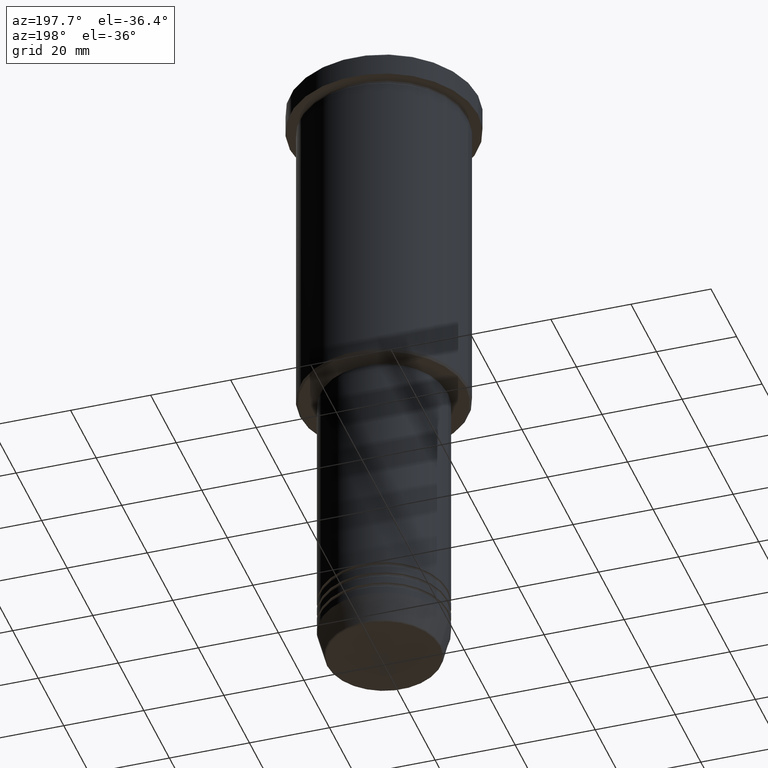
[diagram: clean part render]
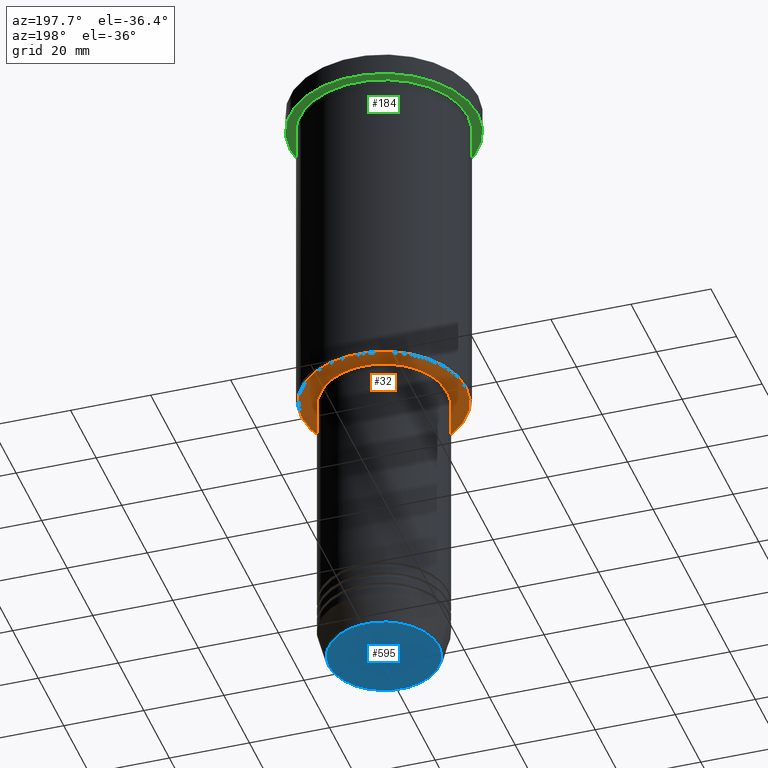
[diagram: same view with three faces highlighted in distinct colors, each labeled with its STEP entity id]
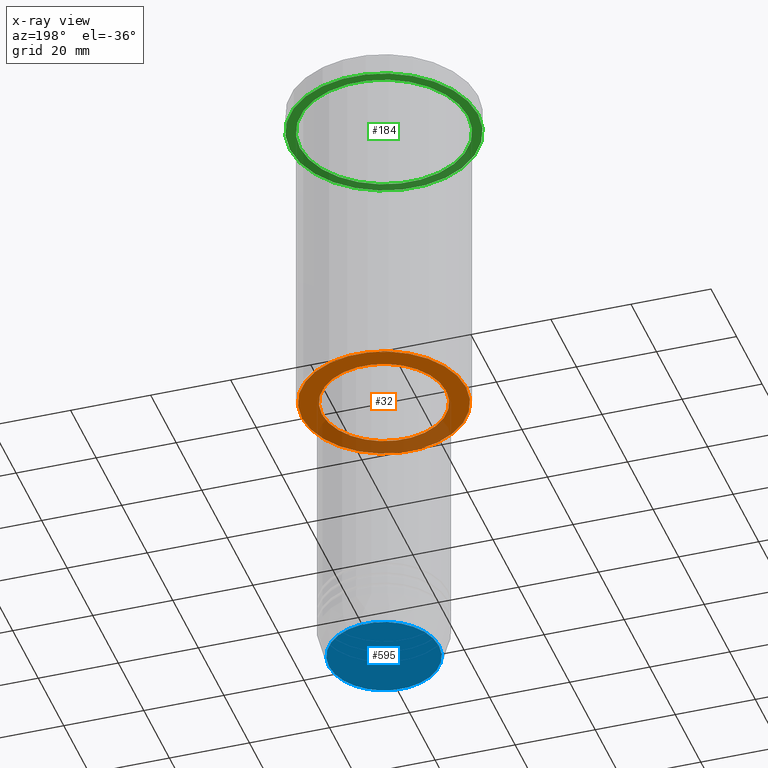
[diagram: x-ray of the same camera — body ghosted, the three highlighted faces saturated]
A machine part, auxiliary view with three faces highlighted in distinct colors.
The next image is the same camera in x-ray (body ghosted, the three faces saturated) — at least one of them is partly hidden behind the body in this view.
Their STEP definitions:

[orange] entity #32 — the highlighted planar face has unit normal (0, 0, -1).
#2 = DIRECTION ( 'NONE',  ( 1.000000000000000000, 0.000000000000000000, 0.000000000000000000 ) ) ;
#32 = ADVANCED_FACE ( 'NONE', ( #145, #764 ), #1131, .T. ) ;
#117 = VERTEX_POINT ( 'NONE', #690 ) ;
#132 = EDGE_CURVE ( 'NONE', #730, #598, #1152, .T. ) ;
#145 = FACE_OUTER_BOUND ( 'NONE', #1093, .T. ) ;
#149 = EDGE_CURVE ( 'NONE', #117, #728, #586, .T. ) ;
#150 = CARTESIAN_POINT ( 'NONE',  ( 0.000000000000000000, 0.000000000000000000, -86.00000000000000000 ) ) ;
#194 = DIRECTION ( 'NONE',  ( -0.000000000000000000, -0.000000000000000000, 1.000000000000000000 ) ) ;
#233 = DIRECTION ( 'NONE',  ( -1.000000000000000000, 0.000000000000000000, 0.000000000000000000 ) ) ;
#270 = DIRECTION ( 'NONE',  ( 0.000000000000000000, 0.000000000000000000, -1.000000000000000000 ) ) ;
#338 = AXIS2_PLACEMENT_3D ( 'NONE', #649, #194, #2 ) ;
#356 = CARTESIAN_POINT ( 'NONE',  ( 0.000000000000000000, 21.00000000000000000, -86.00000000000000000 ) ) ;
#420 = EDGE_CURVE ( 'NONE', #728, #117, #976, .T. ) ;
#445 = DIRECTION ( 'NONE',  ( -1.000000000000000000, 0.000000000000000000, -0.000000000000000000 ) ) ;
#498 = CIRCLE ( 'NONE', #758, 20.50000000000000355 ) ;
#510 = DIRECTION ( 'NONE',  ( 0.000000000000000000, 0.000000000000000000, -1.000000000000000000 ) ) ;
#541 = DIRECTION ( 'NONE',  ( -0.000000000000000000, -0.000000000000000000, 1.000000000000000000 ) ) ;
#586 = CIRCLE ( 'NONE', #338, 15.50000000000000000 ) ;
#592 = CARTESIAN_POINT ( 'NONE',  ( 15.50000000000000000, 0.000000000000000000, -86.00000000000000000 ) ) ;
#598 = VERTEX_POINT ( 'NONE', #1126 ) ;
#649 = CARTESIAN_POINT ( 'NONE',  ( 0.000000000000000000, 0.000000000000000000, -86.00000000000000000 ) ) ;
#686 = EDGE_CURVE ( 'NONE', #598, #730, #498, .T. ) ;
#690 = CARTESIAN_POINT ( 'NONE',  ( -15.50000000000000000, 1.898202538678397557E-15, -86.00000000000000000 ) ) ;
#717 = ORIENTED_EDGE ( 'NONE', *, *, #149, .T. ) ;
#718 = DIRECTION ( 'NONE',  ( 1.000000000000000000, 0.000000000000000000, 0.000000000000000000 ) ) ;
#728 = VERTEX_POINT ( 'NONE', #592 ) ;
#730 = VERTEX_POINT ( 'NONE', #1055 ) ;
#754 = AXIS2_PLACEMENT_3D ( 'NONE', #356, #270, #445 ) ;
#758 = AXIS2_PLACEMENT_3D ( 'NONE', #150, #510, #233 ) ;
#764 = FACE_BOUND ( 'NONE', #1053, .T. ) ;
#796 = DIRECTION ( 'NONE',  ( -1.000000000000000000, 0.000000000000000000, 0.000000000000000000 ) ) ;
#803 = CARTESIAN_POINT ( 'NONE',  ( 0.000000000000000000, 0.000000000000000000, -86.00000000000000000 ) ) ;
#811 = AXIS2_PLACEMENT_3D ( 'NONE', #803, #541, #718 ) ;
#846 = ORIENTED_EDGE ( 'NONE', *, *, #686, .T. ) ;
#898 = AXIS2_PLACEMENT_3D ( 'NONE', #1136, #1045, #796 ) ;
#960 = ORIENTED_EDGE ( 'NONE', *, *, #420, .T. ) ;
#976 = CIRCLE ( 'NONE', #811, 15.50000000000000000 ) ;
#1045 = DIRECTION ( 'NONE',  ( 0.000000000000000000, 0.000000000000000000, -1.000000000000000000 ) ) ;
#1053 = EDGE_LOOP ( 'NONE', ( #960, #717 ) ) ;
#1055 = CARTESIAN_POINT ( 'NONE',  ( 20.50000000000000355, 0.000000000000000000, -86.00000000000000000 ) ) ;
#1087 = ORIENTED_EDGE ( 'NONE', *, *, #132, .T. ) ;
#1093 = EDGE_LOOP ( 'NONE', ( #1087, #846 ) ) ;
#1126 = CARTESIAN_POINT ( 'NONE',  ( -20.50000000000000355, 2.541142108230758269E-15, -86.00000000000000000 ) ) ;
#1131 = PLANE ( 'NONE',  #754 ) ;
#1136 = CARTESIAN_POINT ( 'NONE',  ( 0.000000000000000000, 0.000000000000000000, -86.00000000000000000 ) ) ;
#1152 = CIRCLE ( 'NONE', #898, 20.50000000000000355 ) ;

[blue] entity #595 — the highlighted planar face has unit normal (0, -0, 1).
#8 = DIRECTION ( 'NONE',  ( 1.000000000000000000, 0.000000000000000000, 0.000000000000000000 ) ) ;
#121 = DIRECTION ( 'NONE',  ( 1.000000000000000000, 0.000000000000000000, 0.000000000000000000 ) ) ;
#123 = PLANE ( 'NONE',  #452 ) ;
#151 = AXIS2_PLACEMENT_3D ( 'NONE', #488, #468, #121 ) ;
#201 = CARTESIAN_POINT ( 'NONE',  ( 0.000000000000000000, 0.000000000000000000, -160.9999999999999716 ) ) ;
#332 = ORIENTED_EDGE ( 'NONE', *, *, #443, .T. ) ;
#336 = VERTEX_POINT ( 'NONE', #1006 ) ;
#443 = EDGE_CURVE ( 'NONE', #469, #336, #1139, .T. ) ;
#452 = AXIS2_PLACEMENT_3D ( 'NONE', #201, #494, #8 ) ;
#468 = DIRECTION ( 'NONE',  ( 0.000000000000000000, 0.000000000000000000, -1.000000000000000000 ) ) ;
#469 = VERTEX_POINT ( 'NONE', #642 ) ;
#488 = CARTESIAN_POINT ( 'NONE',  ( 0.000000000000000000, 0.000000000000000000, -160.9999999999999716 ) ) ;
#494 = DIRECTION ( 'NONE',  ( 0.000000000000000000, -0.000000000000000000, 1.000000000000000000 ) ) ;
#540 = ORIENTED_EDGE ( 'NONE', *, *, #1079, .T. ) ;
#595 = ADVANCED_FACE ( 'NONE', ( #934 ), #123, .F. ) ;
#623 = AXIS2_PLACEMENT_3D ( 'NONE', #709, #906, #628 ) ;
#628 = DIRECTION ( 'NONE',  ( 1.000000000000000000, 0.000000000000000000, 0.000000000000000000 ) ) ;
#642 = CARTESIAN_POINT ( 'NONE',  ( -13.74069215899266538, 1.712322416342416577E-15, -160.9999999999999716 ) ) ;
#665 = CIRCLE ( 'NONE', #151, 13.74069215899266538 ) ;
#709 = CARTESIAN_POINT ( 'NONE',  ( 0.000000000000000000, 0.000000000000000000, -160.9999999999999716 ) ) ;
#906 = DIRECTION ( 'NONE',  ( 0.000000000000000000, 0.000000000000000000, -1.000000000000000000 ) ) ;
#934 = FACE_OUTER_BOUND ( 'NONE', #1135, .T. ) ;
#1006 = CARTESIAN_POINT ( 'NONE',  ( 13.74069215899266538, 0.000000000000000000, -160.9999999999999716 ) ) ;
#1079 = EDGE_CURVE ( 'NONE', #336, #469, #665, .T. ) ;
#1135 = EDGE_LOOP ( 'NONE', ( #540, #332 ) ) ;
#1139 = CIRCLE ( 'NONE', #623, 13.74069215899266538 ) ;

[green] entity #184 — the highlighted planar face has unit normal (0, 0, -1).
#20 = ORIENTED_EDGE ( 'NONE', *, *, #509, .F. ) ;
#25 = DIRECTION ( 'NONE',  ( 1.000000000000000000, 0.000000000000000000, 0.000000000000000000 ) ) ;
#57 = DIRECTION ( 'NONE',  ( -0.000000000000000000, -0.000000000000000000, 1.000000000000000000 ) ) ;
#63 = CARTESIAN_POINT ( 'NONE',  ( -21.00000000000000000, 0.000000000000000000, -5.999999999999994671 ) ) ;
#81 = DIRECTION ( 'NONE',  ( 1.000000000000000000, 0.000000000000000000, 0.000000000000000000 ) ) ;
#98 = VERTEX_POINT ( 'NONE', #131 ) ;
#131 = CARTESIAN_POINT ( 'NONE',  ( -23.50000000000000000, 2.877919977996280320E-15, -5.999999999999994671 ) ) ;
#139 = DIRECTION ( 'NONE',  ( -1.000000000000000000, 0.000000000000000000, 0.000000000000000000 ) ) ;
#179 = CARTESIAN_POINT ( 'NONE',  ( 0.000000000000000000, 0.000000000000000000, -5.999999999999994671 ) ) ;
#184 = ADVANCED_FACE ( 'NONE', ( #589, #465 ), #582, .T. ) ;
#197 = DIRECTION ( 'NONE',  ( 0.000000000000000000, 0.000000000000000000, -1.000000000000000000 ) ) ;
#258 = DIRECTION ( 'NONE',  ( -0.000000000000000000, -0.000000000000000000, 1.000000000000000000 ) ) ;
#272 = CARTESIAN_POINT ( 'NONE',  ( 0.000000000000000000, 23.50000000000000000, -5.999999999999994671 ) ) ;
#352 = EDGE_CURVE ( 'NONE', #948, #952, #679, .T. ) ;
#422 = DIRECTION ( 'NONE',  ( -1.000000000000000000, 0.000000000000000000, 0.000000000000000000 ) ) ;
#465 = FACE_OUTER_BOUND ( 'NONE', #1108, .T. ) ;
#476 = DIRECTION ( 'NONE',  ( -0.000000000000000000, -0.000000000000000000, 1.000000000000000000 ) ) ;
#507 = EDGE_LOOP ( 'NONE', ( #772, #702 ) ) ;
#509 = EDGE_CURVE ( 'NONE', #636, #98, #1120, .T. ) ;
#512 = AXIS2_PLACEMENT_3D ( 'NONE', #179, #258, #81 ) ;
#515 = CIRCLE ( 'NONE', #852, 23.50000000000000000 ) ;
#531 = CIRCLE ( 'NONE', #789, 21.00000000000000000 ) ;
#582 = PLANE ( 'NONE',  #863 ) ;
#589 = FACE_BOUND ( 'NONE', #507, .T. ) ;
#634 = DIRECTION ( 'NONE',  ( -1.000000000000000000, 0.000000000000000000, -0.000000000000000000 ) ) ;
#636 = VERTEX_POINT ( 'NONE', #757 ) ;
#675 = DIRECTION ( 'NONE',  ( -0.000000000000000000, -0.000000000000000000, 1.000000000000000000 ) ) ;
#679 = CIRCLE ( 'NONE', #1042, 21.00000000000000000 ) ;
#701 = CARTESIAN_POINT ( 'NONE',  ( 0.000000000000000000, 0.000000000000000000, -5.999999999999994671 ) ) ;
#702 = ORIENTED_EDGE ( 'NONE', *, *, #352, .T. ) ;
#752 = EDGE_CURVE ( 'NONE', #952, #948, #531, .T. ) ;
#757 = CARTESIAN_POINT ( 'NONE',  ( 23.50000000000000000, 0.000000000000000000, -5.999999999999994671 ) ) ;
#772 = ORIENTED_EDGE ( 'NONE', *, *, #752, .T. ) ;
#785 = CARTESIAN_POINT ( 'NONE',  ( 0.000000000000000000, 0.000000000000000000, -5.999999999999994671 ) ) ;
#789 = AXIS2_PLACEMENT_3D ( 'NONE', #785, #675, #422 ) ;
#852 = AXIS2_PLACEMENT_3D ( 'NONE', #929, #476, #25 ) ;
#863 = AXIS2_PLACEMENT_3D ( 'NONE', #272, #197, #634 ) ;
#929 = CARTESIAN_POINT ( 'NONE',  ( 0.000000000000000000, 0.000000000000000000, -5.999999999999994671 ) ) ;
#948 = VERTEX_POINT ( 'NONE', #1183 ) ;
#952 = VERTEX_POINT ( 'NONE', #63 ) ;
#1042 = AXIS2_PLACEMENT_3D ( 'NONE', #701, #57, #139 ) ;
#1050 = EDGE_CURVE ( 'NONE', #98, #636, #515, .T. ) ;
#1092 = ORIENTED_EDGE ( 'NONE', *, *, #1050, .F. ) ;
#1108 = EDGE_LOOP ( 'NONE', ( #20, #1092 ) ) ;
#1120 = CIRCLE ( 'NONE', #512, 23.50000000000000000 ) ;
#1183 = CARTESIAN_POINT ( 'NONE',  ( 21.00000000000000000, 2.571758278209441661E-15, -5.999999999999994671 ) ) ;